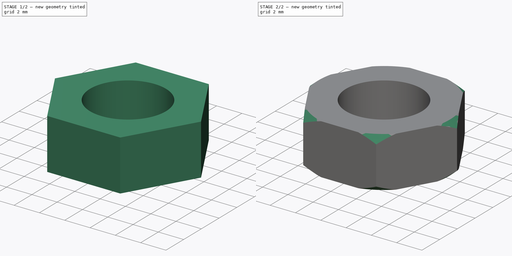
[diagram: build sequence overview — one tinted view per stage of 2, left to right]
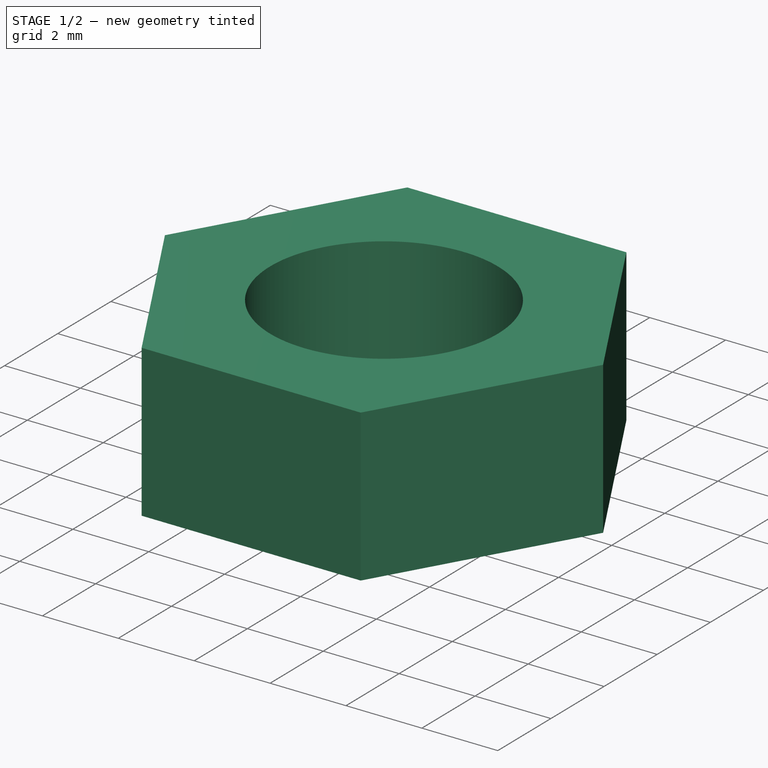
[diagram: stage 1 of 2 — iso view after this stage's code; geometry added in this stage tinted green]
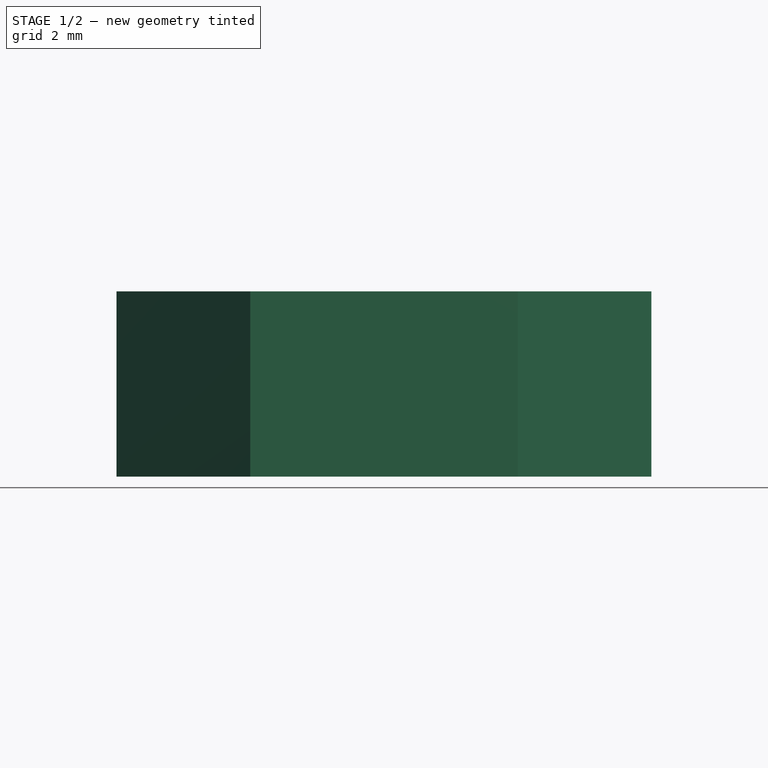
[diagram: stage 1 of 2 — front view after this stage's code; geometry added in this stage tinted green]
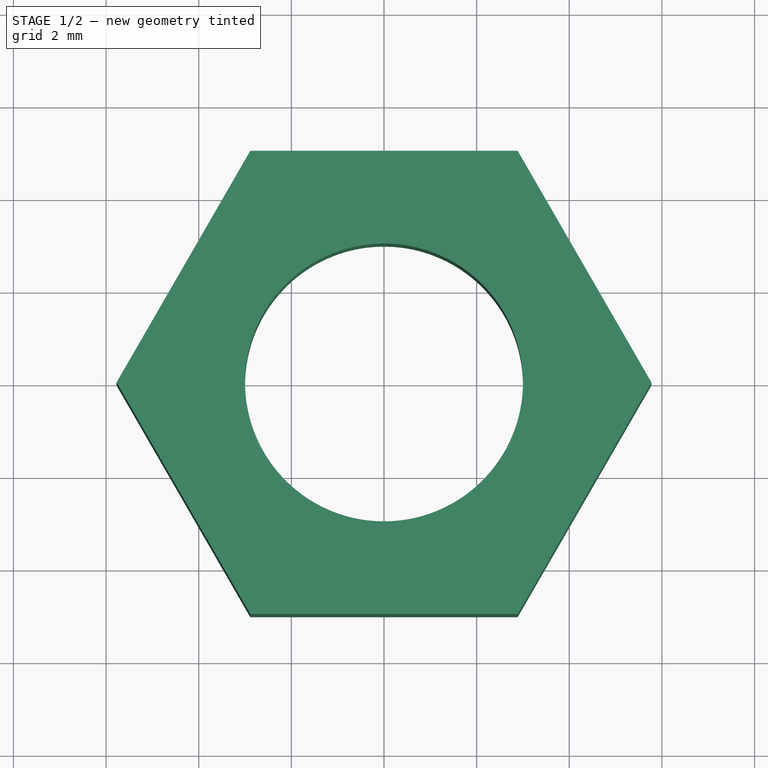
[diagram: stage 1 of 2 — top view after this stage's code; geometry added in this stage tinted green]
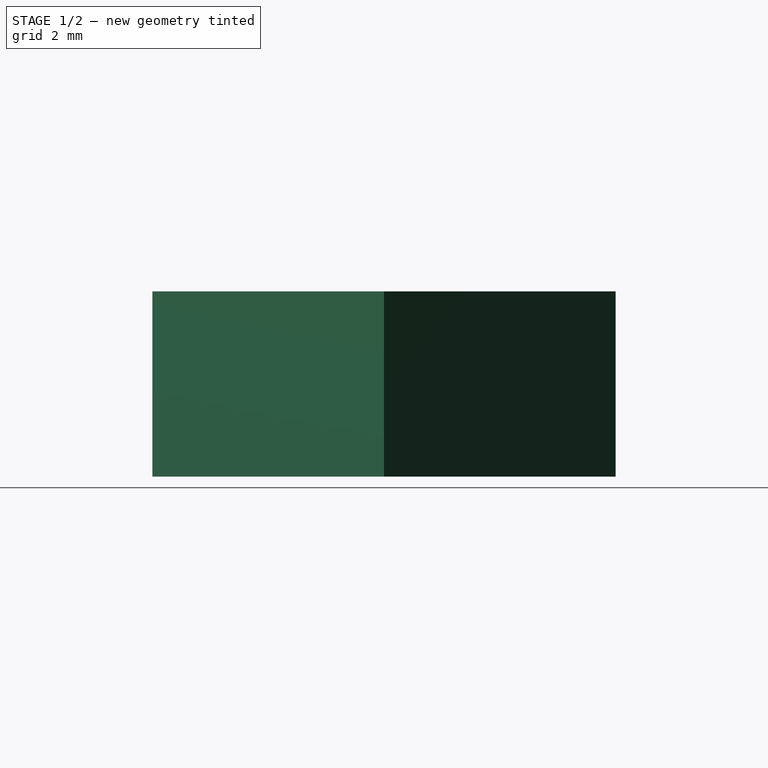
[diagram: stage 1 of 2 — right view after this stage's code; geometry added in this stage tinted green]
FCSTD DOCUMENT  (FreeCAD 1.0R39319 (Git))
Label: Nut-M8
License: All rights reserved
LicenseURL: http://en.wikipedia.org/wiki/All_rights_reserved
objects: Sketcher::SketchObject×2, PartDesign::Pad×1, PartDesign::Groove×1, PartDesign::Body×1
note: 11 computed .brp shape members not serialized (recipe doc carries the construction recipe); baked Part::Feature solids carry a one-line shape summary decoded from their .brp

FEATURE [Sketcher::SketchObject] Sketch
  ArcFitTolerance = 0
  AttachmentSupport = -> [XY_Plane]
  FullyConstrained = true
  MakeInternals = false
  MapMode = 5
  sketch-geometry (8):
    g0: Circle CenterX=0 CenterY=0 CenterZ=0 NormalX=0 NormalY=0 NormalZ=1 AngleXU=0 Radius=3
    g1: LineSegment StartX=2.88675 StartY=5 StartZ=0 EndX=-2.88675 EndY=5 EndZ=0
    g2: LineSegment StartX=-2.88675 StartY=5 StartZ=0 EndX=-5.7735 EndY=0 EndZ=0
    g3: LineSegment StartX=-5.7735 StartY=0 StartZ=0 EndX=-2.88675 EndY=-5 EndZ=0
    g4: LineSegment StartX=-2.88675 StartY=-5 StartZ=0 EndX=2.88675 EndY=-5 EndZ=0
    g5: LineSegment StartX=2.88675 StartY=-5 StartZ=0 EndX=5.7735 EndY=0 EndZ=0
    g6: LineSegment StartX=5.7735 StartY=0 StartZ=0 EndX=2.88675 EndY=5 EndZ=0
    g7: Circle [constr] CenterX=0 CenterY=0 CenterZ=0 NormalX=0 NormalY=0 NormalZ=1 AngleXU=0 Radius=5.7735
  constraints (18):
    c: Coincident(g0,g-1)
    c: Coincident(g1,g2)
    c: Coincident(g2,g3)
    c: Coincident(g3,g4)
    c: Coincident(g4,g5)
    c: Coincident(g5,g6)
    c: Coincident(g6,g1)
    c: Equal(g1, g2-g6) x5
    c: PointOnObject(g1,g7)
    c: PointOnObject(g2,g7)
    c: PointOnObject(g3,g7)
    c: PointOnObject(g4,g7)
    c: PointOnObject(g5,g7)
    c: PointOnObject(g6,g7)
    c: Coincident(g7,g0)
    c: PointOnObject(g2,g-1)
    c: DistanceY(g4,g1) = 10
    c: Diameter(g0) = 6
FEATURE [PartDesign::Pad] Pad
  AllowMultiFace = false
  Direction = (0,0,1)
  Length = 4
  Length2 = 100
  Midplane = true
  Profile = -> Sketch
  Suppressed = false
  Type = 0
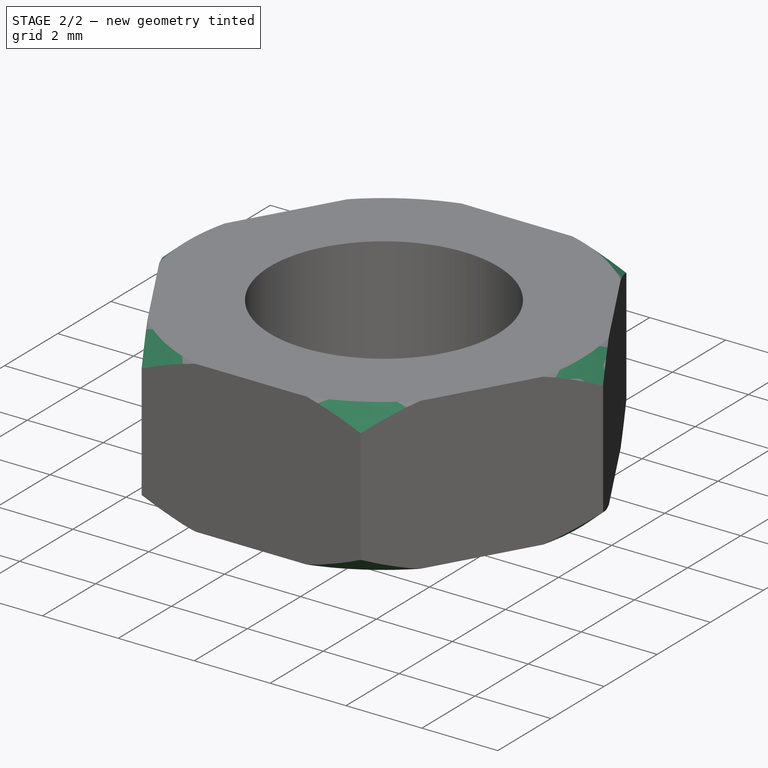
[diagram: stage 2 of 2 — iso view after this stage's code; geometry added in this stage tinted green]
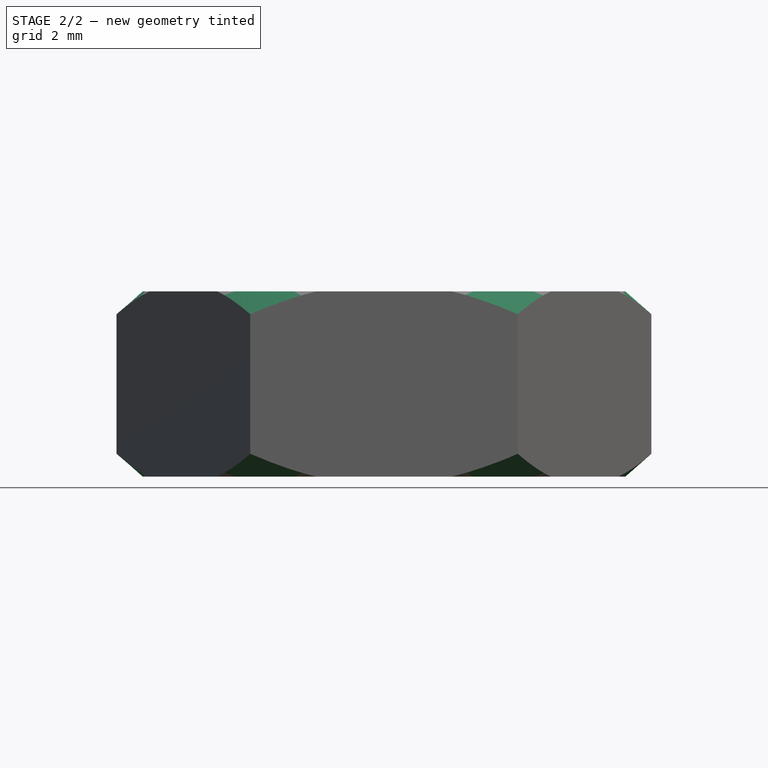
[diagram: stage 2 of 2 — front view after this stage's code; geometry added in this stage tinted green]
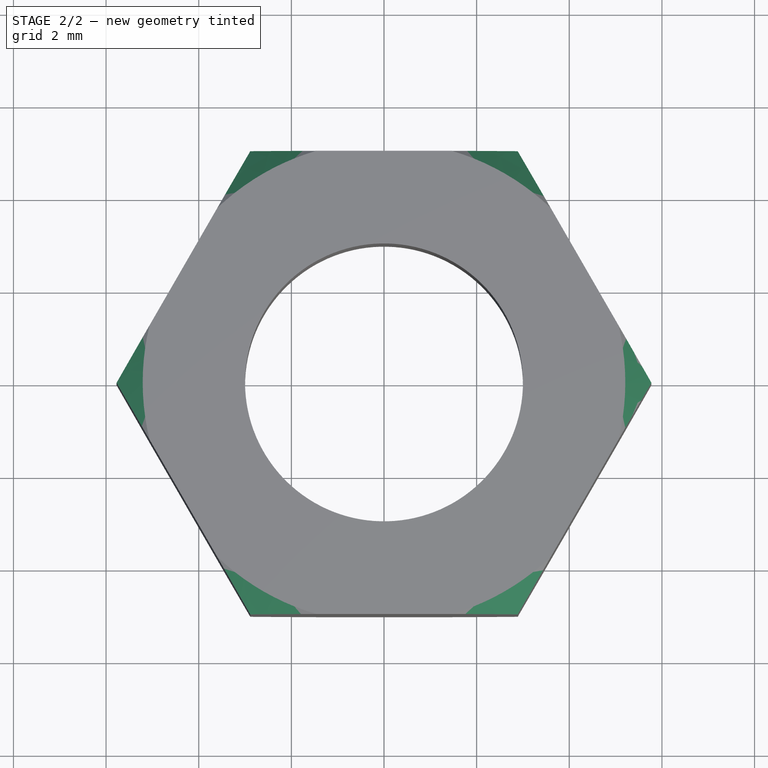
[diagram: stage 2 of 2 — top view after this stage's code; geometry added in this stage tinted green]
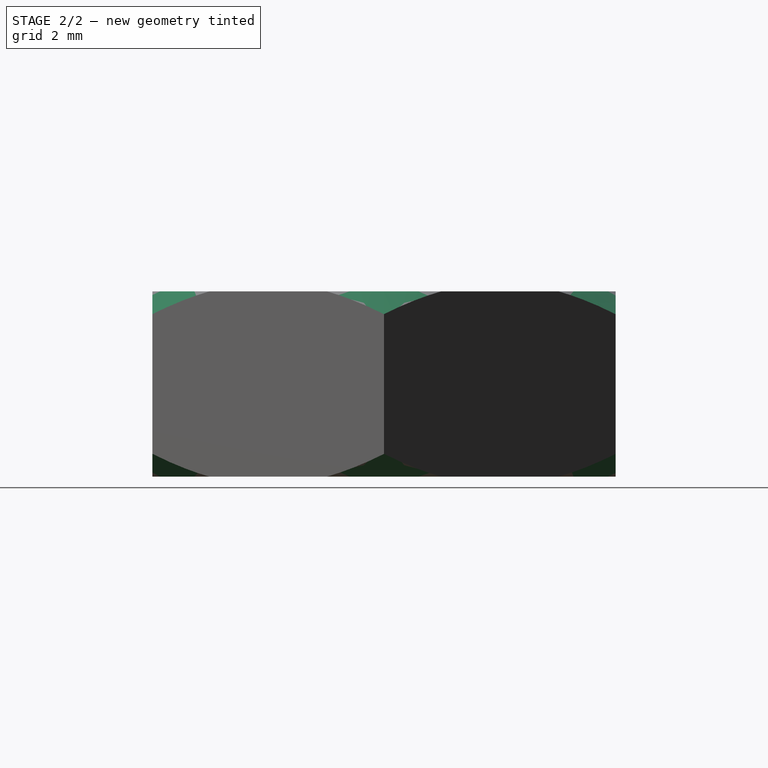
[diagram: stage 2 of 2 — right view after this stage's code; geometry added in this stage tinted green]
FEATURE [Sketcher::SketchObject] Sketch001
  ArcFitTolerance = 0
  AttachmentSupport = -> [XZ_Plane]
  FullyConstrained = false
  MakeInternals = false
  MapMode = 5
  Placement = pos=(0,0,0) rot=(1,0,0;1.5708rad)
  sketch-geometry (6):
    g0: LineSegment StartX=4.60609 StartY=2.52753 StartZ=0 EndX=6.10096 EndY=1.22087 EndZ=0
    g1: LineSegment StartX=6.10096 StartY=1.22087 StartZ=0 EndX=6.10096 EndY=-1.22087 EndZ=0
    g2: LineSegment StartX=6.10096 StartY=-1.22087 StartZ=0 EndX=4.60609 EndY=-2.52753 EndZ=0
    g3: LineSegment StartX=4.60609 StartY=-2.52753 StartZ=0 EndX=7.42563 EndY=-2.52753 EndZ=0
    g4: LineSegment StartX=7.42563 StartY=-2.52753 StartZ=0 EndX=7.42563 EndY=2.52753 EndZ=0
    g5: LineSegment StartX=7.42563 StartY=2.52753 StartZ=0 EndX=4.60609 EndY=2.52753 EndZ=0
  constraints (11):
    c: Coincident(g0,g1)
    c: Coincident(g1,g2)
    c: Coincident(g2,g3)
    c: Coincident(g3,g4)
    c: Coincident(g4,g5)
    c: Horizontal(g5)
    c: Coincident(g5,g0)
    c: Horizontal(g3)
    c: Symmetric(g0,g1,g-1)
    c: Symmetric(g4,g3,g-1)
    c: Equal(g5,g3)
FEATURE [PartDesign::Groove] Groove
  AllowMultiFace = false
  Angle = 360
  Angle2 = 60
  Axis = (0,2e-16,1)
  Base = (0,0,0)
  BaseFeature = -> Pad
  Profile = -> Sketch001
  ReferenceAxis = -> Sketch001 [V_Axis]
  Suppressed = false
  Type = 0
FEATURE [PartDesign::Body] Body
  AllowCompound = false
  Group = -> [Sketch,Pad,Sketch001,Groove]
  Origin = -> Origin
  Tip = -> Groove
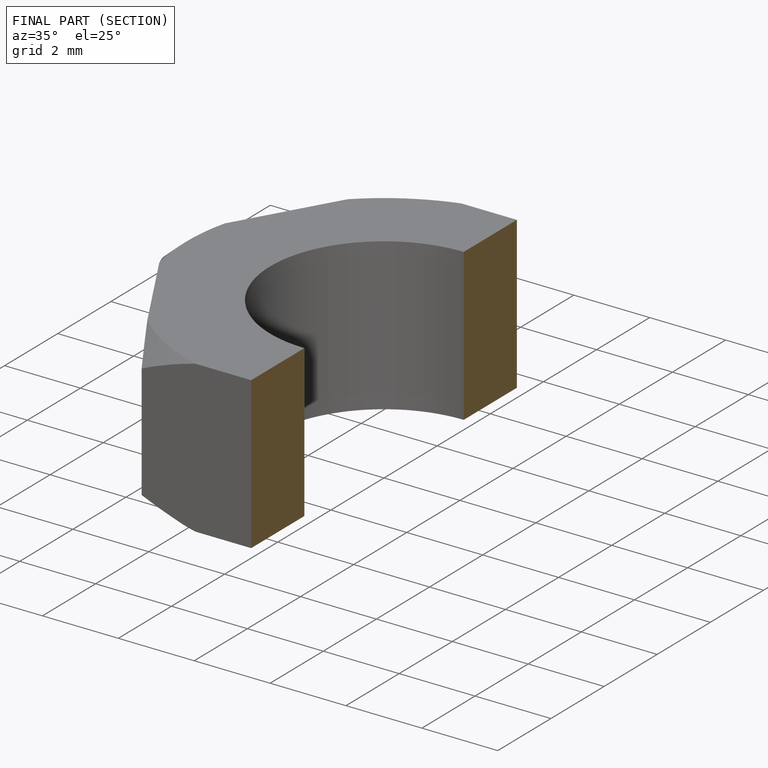
[diagram: finished part — half-section view (interior)]
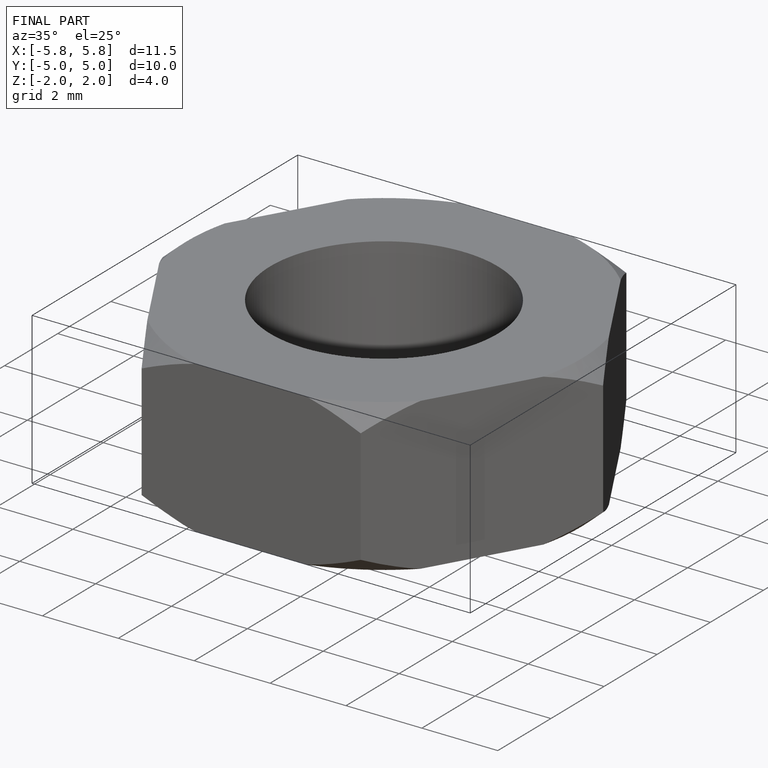
[diagram: finished part — iso view with bounding-box wireframe]
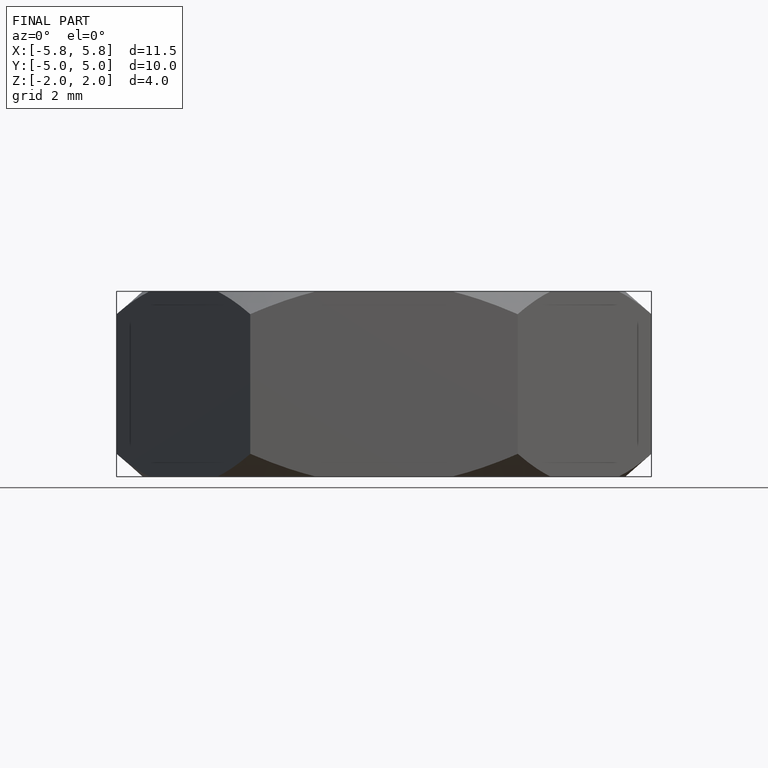
[diagram: finished part — front view with bounding-box wireframe]
